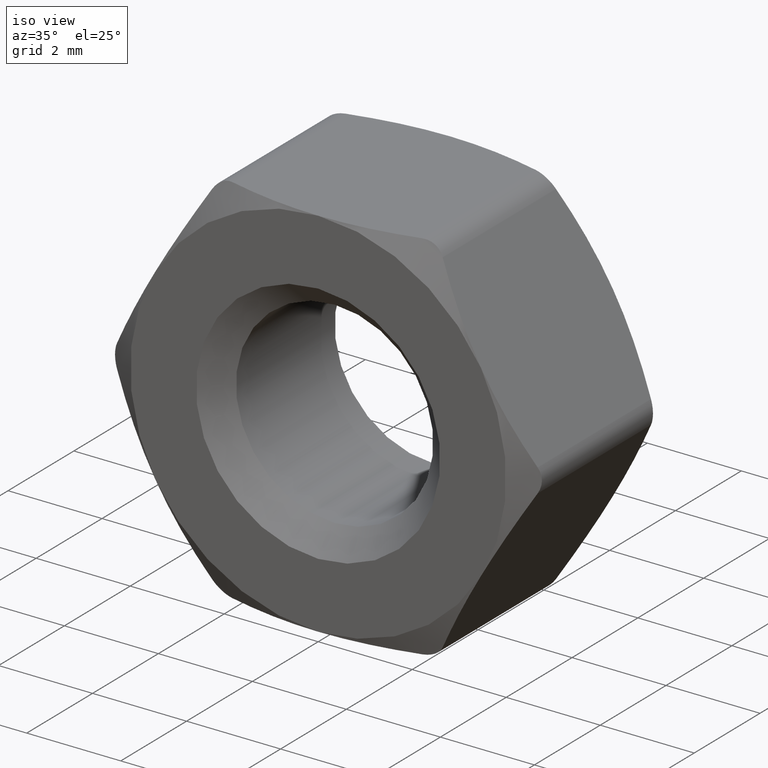
[diagram: clean part render]
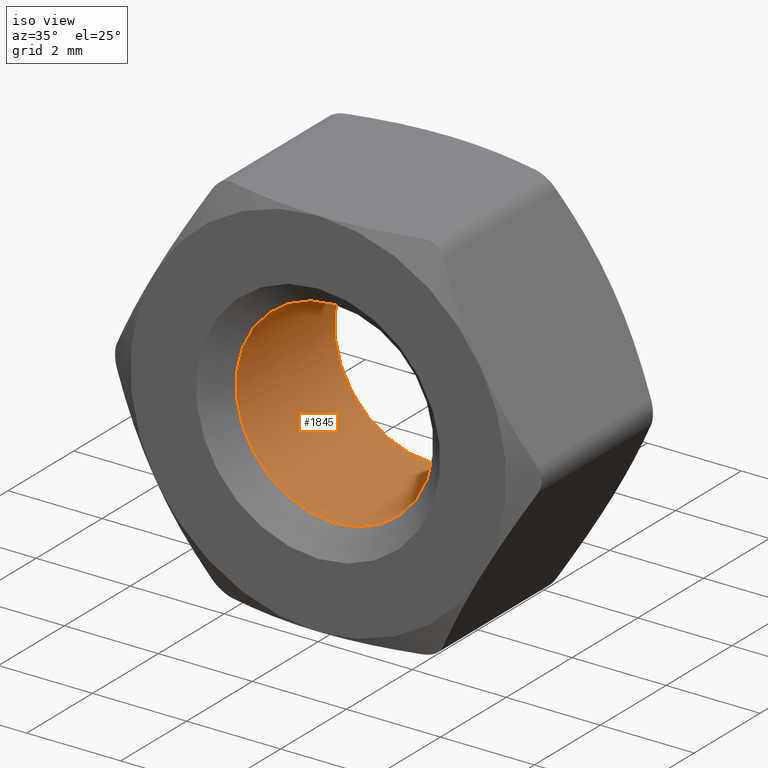
[diagram: same view with one face highlighted and labeled with its STEP entity id]
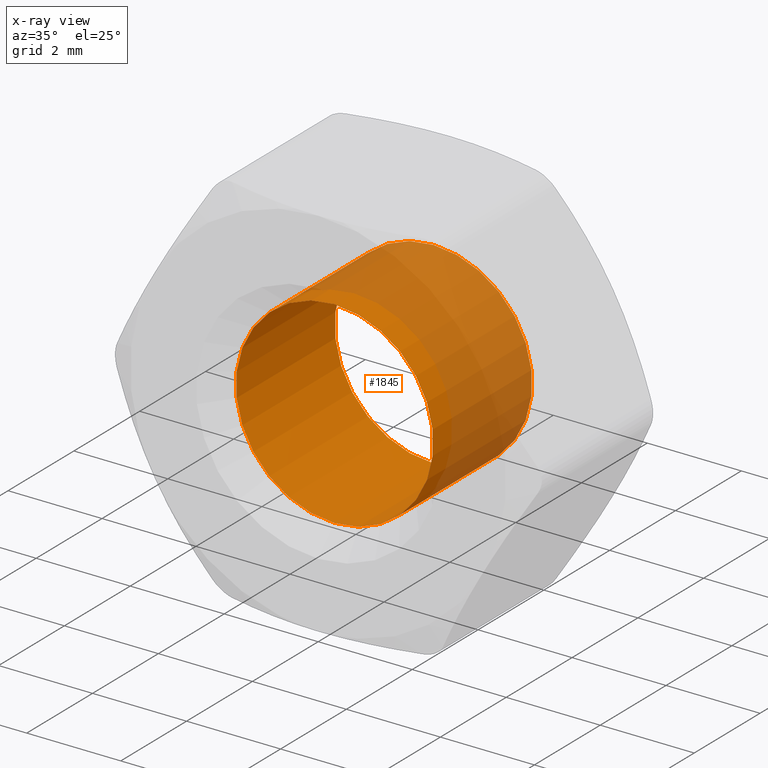
[diagram: x-ray of the same camera — body ghosted, the highlighted face saturated]
A machine part, iso view. The second image highlights one B-rep face of the part: STEP entity #1845.
The next image is the same camera in x-ray: the body ghosted, the highlighted face saturated — about 42% of this face is hidden behind the body in this view.
In plain terms, the highlighted cylindrical surface (bore or boss wall) has radius 2.1 mm, axis along (-0, 1, -0).
Its self-contained STEP definition (entity closure, byte-faithful):
#256 = AXIS2_PLACEMENT_3D ( 'NONE', #1918, #1023, #885 ) ;
#427 = CARTESIAN_POINT ( 'NONE',  ( 0.0000000000000000000, 2.000000000000000000, 0.0000000000000000000 ) ) ;
#439 = CYLINDRICAL_SURFACE ( 'NONE', #491, 2.099999999999998300 ) ;
#491 = AXIS2_PLACEMENT_3D ( 'NONE', #427, #1467, #562 ) ;
#545 = CARTESIAN_POINT ( 'NONE',  ( 0.0000000000000000000, 1.499999999999999100, 0.0000000000000000000 ) ) ;
#562 = DIRECTION ( 'NONE',  ( 0.0000000000000000000, 0.0000000000000000000, 1.000000000000000000 ) ) ;
#688 = DIRECTION ( 'NONE',  ( 0.0000000000000000000, 1.000000000000000000, 0.0000000000000000000 ) ) ;
#829 = CIRCLE ( 'NONE', #256, 2.099999999999998300 ) ;
#832 = ORIENTED_EDGE ( 'NONE', *, *, #1709, .T. ) ;
#885 = DIRECTION ( 'NONE',  ( 0.0000000000000000000, 0.0000000000000000000, 1.000000000000000000 ) ) ;
#921 = EDGE_LOOP ( 'NONE', ( #832 ) ) ;
#1023 = DIRECTION ( 'NONE',  ( -0.0000000000000000000, -1.000000000000000000, -0.0000000000000000000 ) ) ;
#1133 = VERTEX_POINT ( 'NONE', #1787 ) ;
#1199 = FACE_OUTER_BOUND ( 'NONE', #1342, .T. ) ;
#1219 = FACE_OUTER_BOUND ( 'NONE', #921, .T. ) ;
#1307 = CIRCLE ( 'NONE', #1712, 2.099999999999998300 ) ;
#1342 = EDGE_LOOP ( 'NONE', ( #1429 ) ) ;
#1429 = ORIENTED_EDGE ( 'NONE', *, *, #1436, .T. ) ;
#1435 = DIRECTION ( 'NONE',  ( 0.0000000000000000000, 0.0000000000000000000, 1.000000000000000000 ) ) ;
#1436 = EDGE_CURVE ( 'NONE', #1133, #1133, #1307, .T. ) ;
#1467 = DIRECTION ( 'NONE',  ( -0.0000000000000000000, 1.000000000000000000, -0.0000000000000000000 ) ) ;
#1661 = CARTESIAN_POINT ( 'NONE',  ( 0.0000000000000000000, -1.499999999999998700, 2.099999999999998300 ) ) ;
#1709 = EDGE_CURVE ( 'NONE', #1927, #1927, #829, .T. ) ;
#1712 = AXIS2_PLACEMENT_3D ( 'NONE', #545, #688, #1435 ) ;
#1787 = CARTESIAN_POINT ( 'NONE',  ( 0.0000000000000000000, 1.499999999999999100, 2.099999999999998300 ) ) ;
#1845 = ADVANCED_FACE ( 'NONE', ( #1199, #1219 ), #439, .F. ) ;
#1918 = CARTESIAN_POINT ( 'NONE',  ( 0.0000000000000000000, -1.499999999999998700, 0.0000000000000000000 ) ) ;
#1927 = VERTEX_POINT ( 'NONE', #1661 ) ;